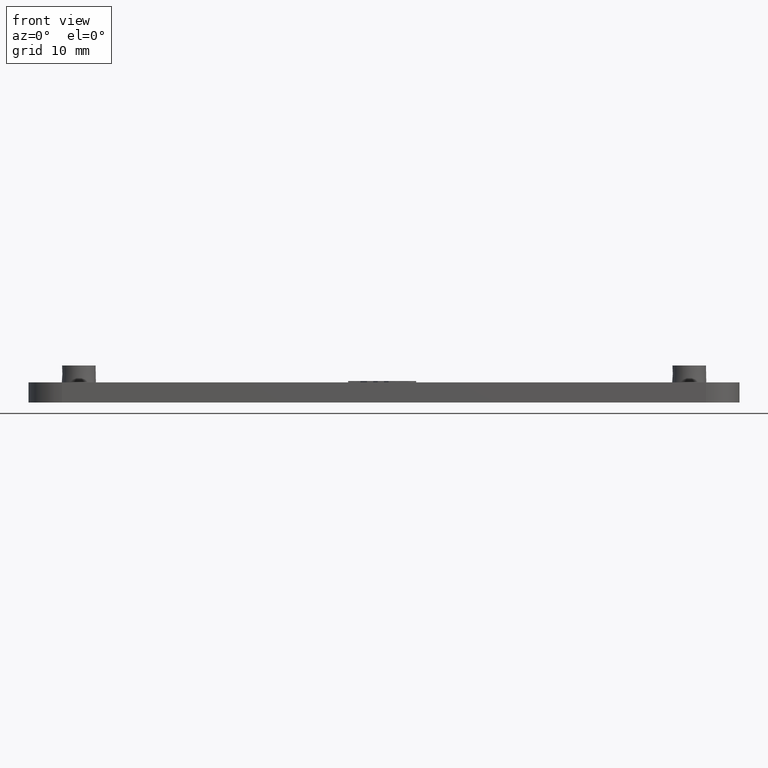
[diagram: clean part render]
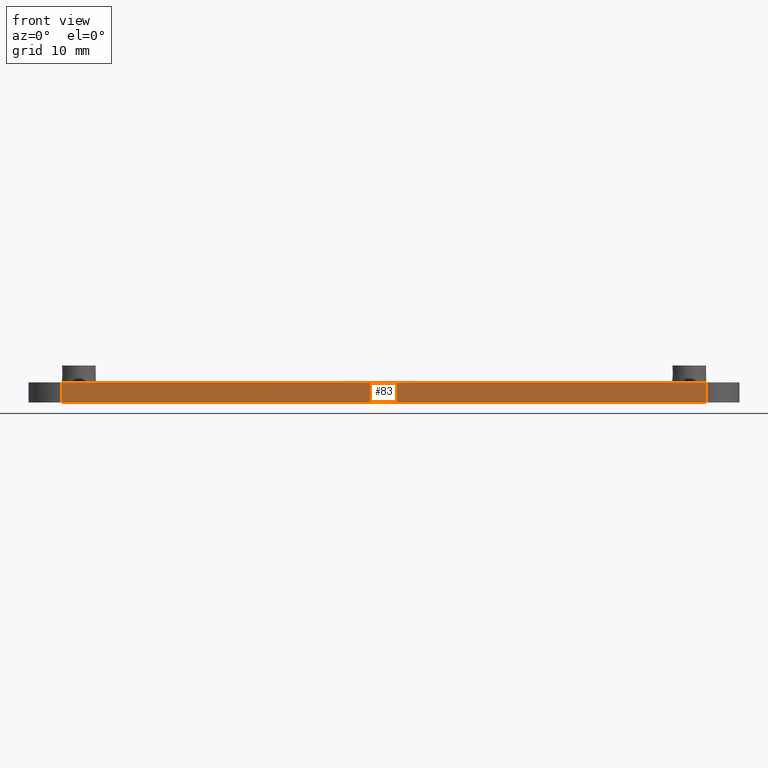
[diagram: same view with one face highlighted and labeled with its STEP entity id]
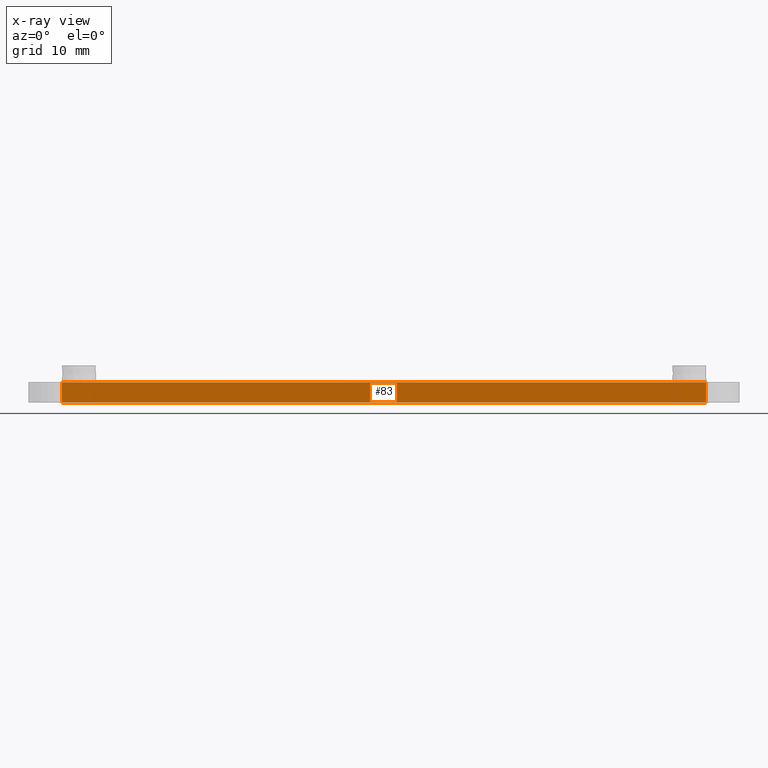
[diagram: x-ray of the same camera — body ghosted, the highlighted face saturated]
A machine part, front view. The second image highlights one B-rep face of the part: STEP entity #83.
The next image is the same camera in x-ray: the body ghosted, the highlighted face saturated — about 0% of this face is hidden behind the body in this view.
In plain terms, the highlighted planar face has unit normal (-0, 1, -0).
Its self-contained STEP definition (entity closure, byte-faithful):
#83 = ADVANCED_FACE( '', ( #162 ), #163, .F. );
#162 = FACE_OUTER_BOUND( '', #295, .T. );
#163 = PLANE( '', #296 );
#295 = EDGE_LOOP( '', ( #509, #510, #511, #512 ) );
#296 = AXIS2_PLACEMENT_3D( '', #513, #514, #515 );
#509 = ORIENTED_EDGE( '', *, *, #942, .F. );
#510 = ORIENTED_EDGE( '', *, *, #949, .T. );
#511 = ORIENTED_EDGE( '', *, *, #900, .T. );
#512 = ORIENTED_EDGE( '', *, *, #950, .T. );
#513 = CARTESIAN_POINT( '', ( 65.5000000000001, -12.5000000000000, -4.08679844523044E-014 ) );
#514 = DIRECTION( '', ( -1.57772181044202E-030, 1.00000000000000, -6.12303176911189E-017 ) );
#515 = DIRECTION( '', ( 1.00000000000000, 1.57772181044202E-030, -9.66044076815723E-047 ) );
#900 = EDGE_CURVE( '', #1053, #1065, #1067, .T. );
#942 = EDGE_CURVE( '', #1146, #1148, #1149, .T. );
#949 = EDGE_CURVE( '', #1146, #1053, #1158, .T. );
#950 = EDGE_CURVE( '', #1065, #1148, #1159, .T. );
#1053 = VERTEX_POINT( '', #1312 );
#1065 = VERTEX_POINT( '', #1327 );
#1067 = LINE( '', #1329, #1330 );
#1146 = VERTEX_POINT( '', #1445 );
#1148 = VERTEX_POINT( '', #1447 );
#1149 = LINE( '', #1448, #1449 );
#1158 = LINE( '', #1461, #1462 );
#1159 = LINE( '', #1463, #1464 );
#1312 = CARTESIAN_POINT( '', ( 48.0000000000000, -12.5000000000000, 2.99999999999996 ) );
#1327 = CARTESIAN_POINT( '', ( -48.0000000000000, -12.5000000000000, 2.99999999999996 ) );
#1329 = CARTESIAN_POINT( '', ( 65.5000000000001, -12.5000000000000, 2.99999999999996 ) );
#1330 = VECTOR( '', #1684, 1000.00000000000 );
#1445 = CARTESIAN_POINT( '', ( 48.0000000000000, -12.5000000000000, -9.63791356835622E-014 ) );
#1447 = CARTESIAN_POINT( '', ( -48.0000000000000, -12.5000000000000, -4.08679844523044E-014 ) );
#1448 = CARTESIAN_POINT( '', ( 65.5000000000001, -12.5000000000000, -4.08679844523044E-014 ) );
#1449 = VECTOR( '', #1736, 1000.00000000000 );
#1461 = CARTESIAN_POINT( '', ( 48.0000000000000, -12.5000000000000, -92.8338482168494 ) );
#1462 = VECTOR( '', #1749, 1000.00000000000 );
#1463 = CARTESIAN_POINT( '', ( -48.0000000000000, -12.5000000000000, 111.868624669363 ) );
#1464 = VECTOR( '', #1750, 1000.00000000000 );
#1684 = DIRECTION( '', ( -1.00000000000000, 2.36658271566303E-030, -1.44906611522358E-046 ) );
#1736 = DIRECTION( '', ( -1.00000000000000, 2.36658271566303E-030, -1.44906611522358E-046 ) );
#1749 = DIRECTION( '', ( 1.60751816480225E-016, 1.81794180051289E-016, 1.00000000000000 ) );
#1750 = DIRECTION( '', ( 1.60751816480226E-016, -1.81794180051289E-016, -1.00000000000000 ) );